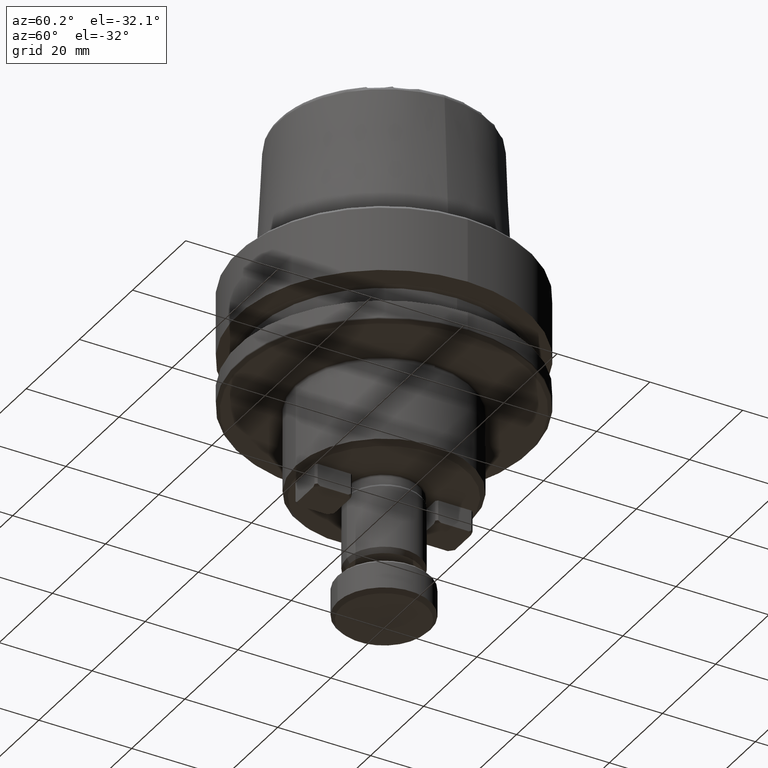
[diagram: clean part render]
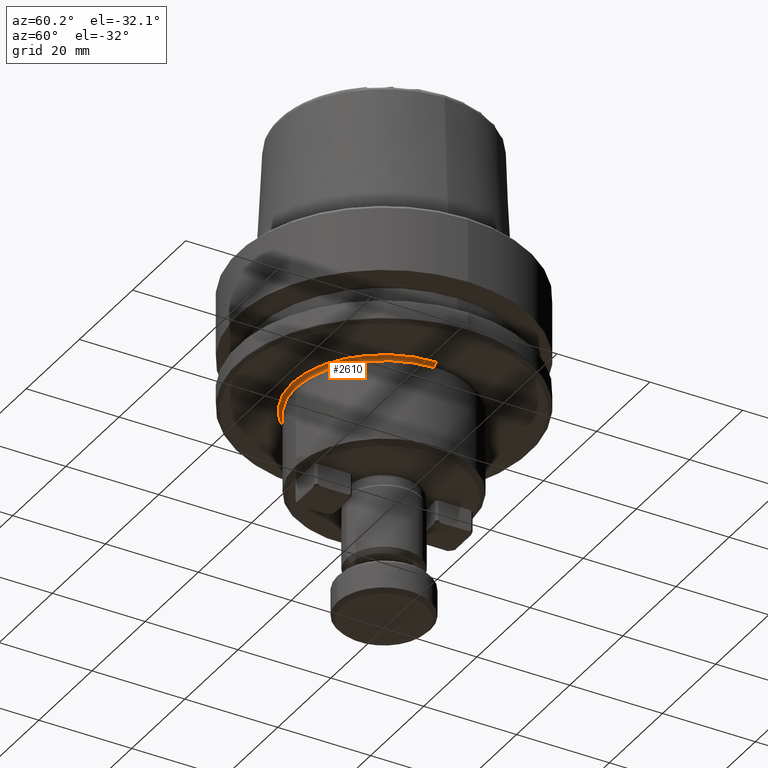
[diagram: same view with one face highlighted and labeled with its STEP entity id]
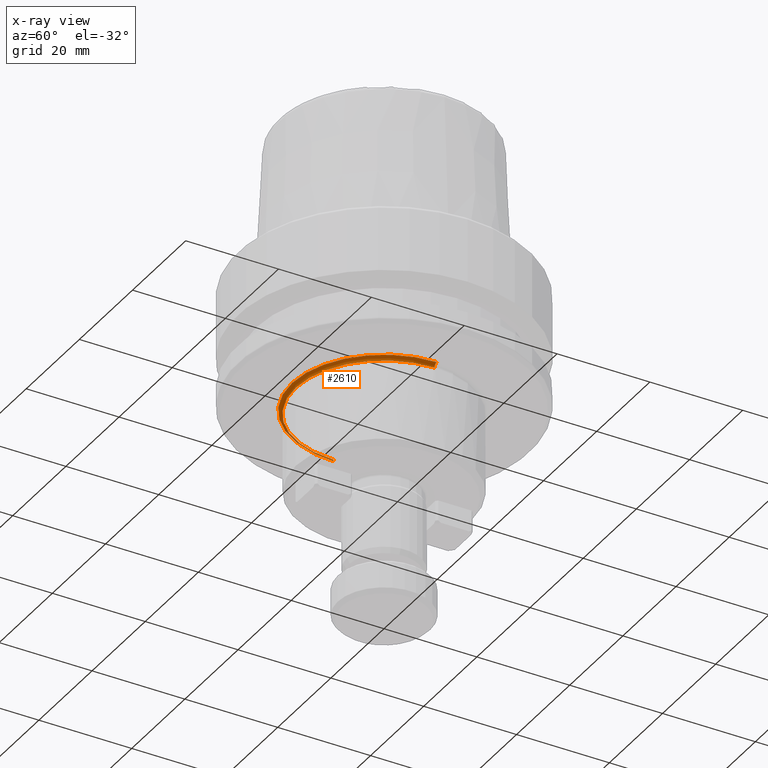
[diagram: x-ray of the same camera — body ghosted, the highlighted face saturated]
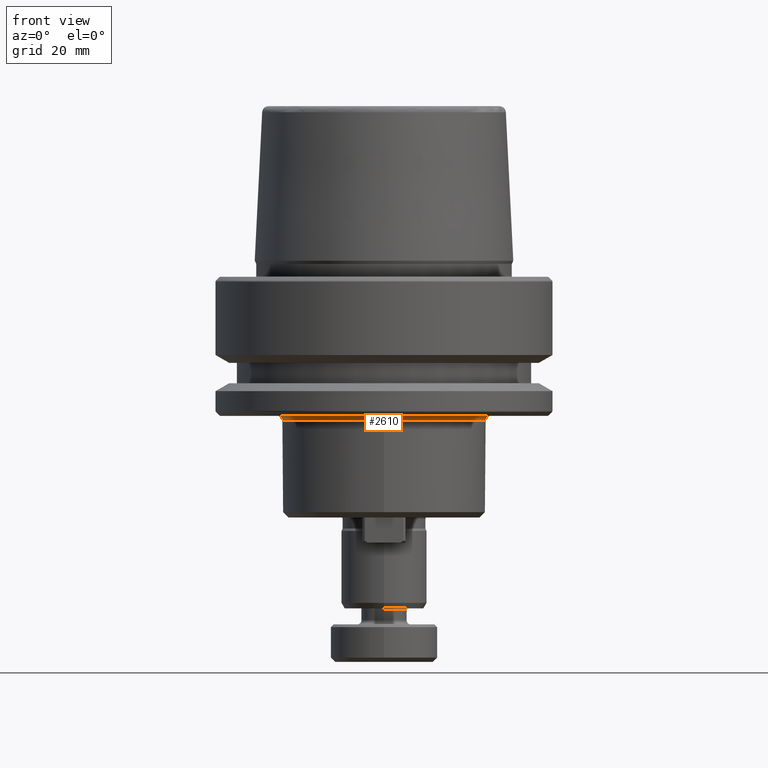
[diagram: same view with one face highlighted and labeled with its STEP entity id]
A machine part, auxiliary view. The second image highlights one B-rep face of the part: STEP entity #2610.
The next image is the same camera in x-ray: the body ghosted, the highlighted face saturated — about 7% of this face is hidden behind the body in this view.
A second angle (front view) of the same face is appended — the face is thin or edge-on in the first view.
In plain terms, the highlighted toroidal blend (fillet) surface has major radius 19.8 mm and minor (blend) radius 0.8 mm.
Its self-contained STEP definition (entity closure, byte-faithful):
#122 = VERTEX_POINT ( 'NONE', #2375 ) ;
#134 = DIRECTION ( 'NONE',  ( -0.0000000000000000000, -0.0000000000000000000, 1.000000000000000000 ) ) ;
#185 = CIRCLE ( 'NONE', #2110, 19.00000000000000400 ) ;
#217 = VERTEX_POINT ( 'NONE', #243 ) ;
#230 = ORIENTED_EDGE ( 'NONE', *, *, #1397, .T. ) ;
#243 = CARTESIAN_POINT ( 'NONE',  ( 19.00000000000000400, -1.496790532291201900E-016, -26.80000000000000400 ) ) ;
#322 = VERTEX_POINT ( 'NONE', #2748 ) ;
#422 = EDGE_LOOP ( 'NONE', ( #666, #230, #944, #617, #2532 ) ) ;
#437 = AXIS2_PLACEMENT_3D ( 'NONE', #2159, #840, #2379 ) ;
#487 = CIRCLE ( 'NONE', #437, 0.7999999999999986000 ) ;
#514 = DIRECTION ( 'NONE',  ( 1.000000000000000000, 0.0000000000000000000, 0.0000000000000000000 ) ) ;
#617 = ORIENTED_EDGE ( 'NONE', *, *, #1829, .F. ) ;
#621 = CARTESIAN_POINT ( 'NONE',  ( -19.00000000000000400, 2.226135737116744800E-015, -26.80000000000000400 ) ) ;
#666 = ORIENTED_EDGE ( 'NONE', *, *, #710, .F. ) ;
#686 = VERTEX_POINT ( 'NONE', #2070 ) ;
#710 = EDGE_CURVE ( 'NONE', #686, #122, #1366, .T. ) ;
#754 = CARTESIAN_POINT ( 'NONE',  ( 0.0000000000000000000, -1.496790532291201900E-016, -26.00000000000000700 ) ) ;
#771 = VERTEX_POINT ( 'NONE', #621 ) ;
#795 = CIRCLE ( 'NONE', #2205, 19.00000000000000400 ) ;
#840 = DIRECTION ( 'NONE',  ( 0.0000000000000000000, -1.000000000000000000, 0.0000000000000000000 ) ) ;
#881 = CARTESIAN_POINT ( 'NONE',  ( 0.0000000000000000000, -1.496790532291201900E-016, -26.80000000000000400 ) ) ;
#938 = DIRECTION ( 'NONE',  ( -0.0000000000000000000, -0.0000000000000000000, 1.000000000000000000 ) ) ;
#944 = ORIENTED_EDGE ( 'NONE', *, *, #1621, .F. ) ;
#998 = DIRECTION ( 'NONE',  ( 1.000000000000000000, 0.0000000000000000000, 0.0000000000000000000 ) ) ;
#1017 = CARTESIAN_POINT ( 'NONE',  ( 0.0000000000000000000, -1.496790532291201900E-016, -26.80000000000000400 ) ) ;
#1099 = DIRECTION ( 'NONE',  ( 1.000000000000000000, 0.0000000000000000000, 0.0000000000000000000 ) ) ;
#1146 = DIRECTION ( 'NONE',  ( 1.224646799147353200E-016, 1.000000000000000000, 0.0000000000000000000 ) ) ;
#1238 = DIRECTION ( 'NONE',  ( 1.000000000000000000, 0.0000000000000000000, 0.0000000000000000000 ) ) ;
#1366 = CIRCLE ( 'NONE', #2154, 19.80000000000000100 ) ;
#1385 = CARTESIAN_POINT ( 'NONE',  ( 0.0000000000000000000, -1.496790532291201900E-016, -26.80000000000000400 ) ) ;
#1397 = EDGE_CURVE ( 'NONE', #686, #771, #2285, .T. ) ;
#1445 = TOROIDAL_SURFACE ( 'NONE', #1948, 19.80000000000000100, 0.8000000000000000400 ) ;
#1621 = EDGE_CURVE ( 'NONE', #322, #771, #185, .T. ) ;
#1747 = EDGE_CURVE ( 'NONE', #122, #217, #487, .T. ) ;
#1829 = EDGE_CURVE ( 'NONE', #217, #322, #795, .T. ) ;
#1847 = AXIS2_PLACEMENT_3D ( 'NONE', #2458, #1146, #2663 ) ;
#1948 = AXIS2_PLACEMENT_3D ( 'NONE', #1385, #938, #514 ) ;
#2023 = FACE_OUTER_BOUND ( 'NONE', #422, .T. ) ;
#2070 = CARTESIAN_POINT ( 'NONE',  ( -19.80000000000000100, 2.275121609082639500E-015, -26.00000000000000700 ) ) ;
#2110 = AXIS2_PLACEMENT_3D ( 'NONE', #1017, #2540, #1238 ) ;
#2154 = AXIS2_PLACEMENT_3D ( 'NONE', #754, #134, #998 ) ;
#2159 = CARTESIAN_POINT ( 'NONE',  ( 19.80000000000000100, -1.496790532291201900E-016, -26.80000000000000400 ) ) ;
#2205 = AXIS2_PLACEMENT_3D ( 'NONE', #881, #2413, #1099 ) ;
#2285 = CIRCLE ( 'NONE', #1847, 0.7999999999999986000 ) ;
#2375 = CARTESIAN_POINT ( 'NONE',  ( 19.80000000000000100, -1.496790532291201900E-016, -26.00000000000000700 ) ) ;
#2379 = DIRECTION ( 'NONE',  ( 0.0000000000000000000, 0.0000000000000000000, -1.000000000000000000 ) ) ;
#2413 = DIRECTION ( 'NONE',  ( 0.0000000000000000000, 0.0000000000000000000, -1.000000000000000000 ) ) ;
#2458 = CARTESIAN_POINT ( 'NONE',  ( -19.80000000000000100, 2.275121609082639500E-015, -26.80000000000000400 ) ) ;
#2532 = ORIENTED_EDGE ( 'NONE', *, *, #1747, .F. ) ;
#2540 = DIRECTION ( 'NONE',  ( 0.0000000000000000000, 0.0000000000000000000, -1.000000000000000000 ) ) ;
#2610 = ADVANCED_FACE ( 'NONE', ( #2023 ), #1445, .F. ) ;
#2663 = DIRECTION ( 'NONE',  ( -1.000000000000000000, 1.224646799147353500E-016, 0.0000000000000000000 ) ) ;
#2748 = CARTESIAN_POINT ( 'NONE',  ( 2.326828918379971400E-015, -19.00000000000000400, -26.80000000000000400 ) ) ;